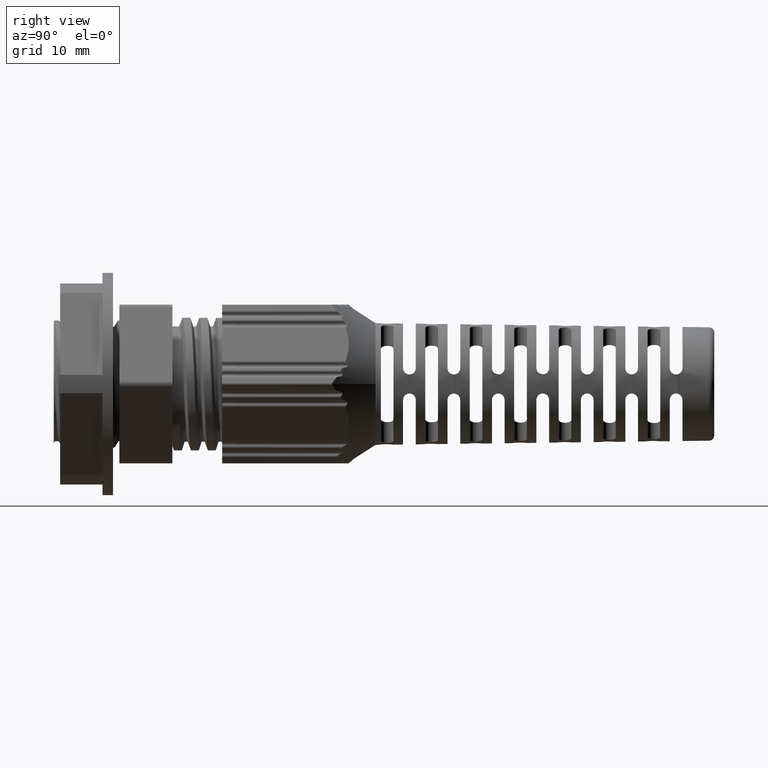
[diagram: clean part render]
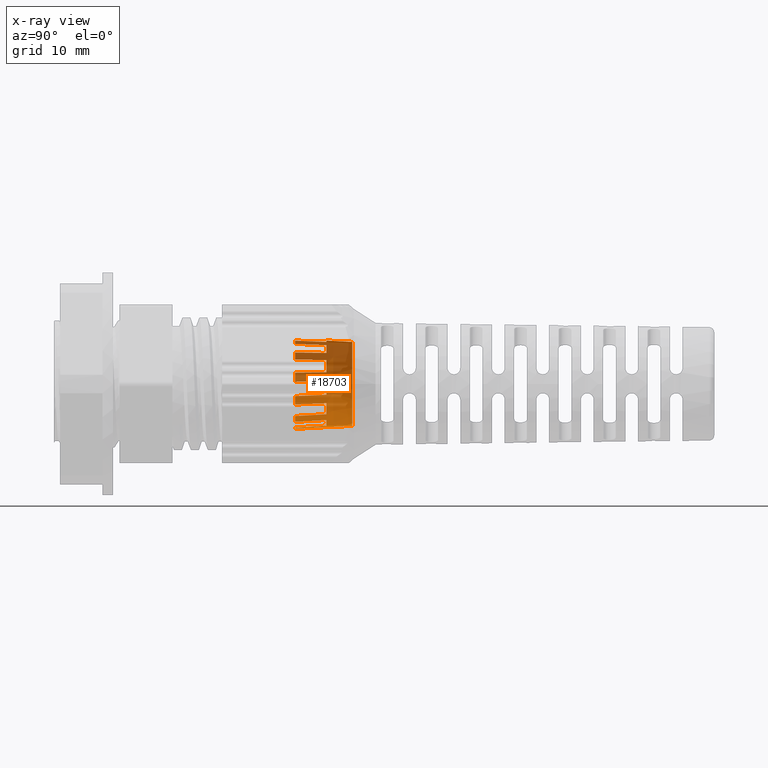
[diagram: x-ray — body ghosted, one internal face saturated and labeled with its STEP entity id]
A machine part, right view, then the same camera in x-ray: the body is ghosted and one INTERNAL B-rep face — a face not visible from any outside direction — is saturated and labeled: STEP entity #18703.
In plain terms, the highlighted conical surface has half-angle 3 deg.
Its self-contained STEP definition (entity closure, byte-faithful):
#1034 = VERTEX_POINT ( 'NONE', #8266 ) ;
#1081 = VERTEX_POINT ( 'NONE', #8327 ) ;
#1084 = VERTEX_POINT ( 'NONE', #8304 ) ;
#1088 = VERTEX_POINT ( 'NONE', #8349 ) ;
#1089 = VERTEX_POINT ( 'NONE', #8310 ) ;
#1090 = VERTEX_POINT ( 'NONE', #8333 ) ;
#1101 = VERTEX_POINT ( 'NONE', #8314 ) ;
#1102 = VERTEX_POINT ( 'NONE', #8348 ) ;
#1107 = VERTEX_POINT ( 'NONE', #8336 ) ;
#1116 = VERTEX_POINT ( 'NONE', #8290 ) ;
#1119 = VERTEX_POINT ( 'NONE', #8309 ) ;
#1135 = VERTEX_POINT ( 'NONE', #8410 ) ;
#1137 = VERTEX_POINT ( 'NONE', #8380 ) ;
#1142 = VERTEX_POINT ( 'NONE', #8369 ) ;
#1147 = VERTEX_POINT ( 'NONE', #8357 ) ;
#1153 = VERTEX_POINT ( 'NONE', #8375 ) ;
#1155 = VERTEX_POINT ( 'NONE', #8353 ) ;
#1176 = VERTEX_POINT ( 'NONE', #8415 ) ;
#1186 = VERTEX_POINT ( 'NONE', #8427 ) ;
#1196 = VERTEX_POINT ( 'NONE', #8438 ) ;
#1198 = VERTEX_POINT ( 'NONE', #8448 ) ;
#1199 = VERTEX_POINT ( 'NONE', #8425 ) ;
#1200 = VERTEX_POINT ( 'NONE', #8444 ) ;
#1205 = VERTEX_POINT ( 'NONE', #8449 ) ;
#1984 = ORIENTED_EDGE ( 'NONE', *, *, #18435, .T. ) ;
#1987 = ORIENTED_EDGE ( 'NONE', *, *, #18556, .T. ) ;
#1997 = ORIENTED_EDGE ( 'NONE', *, *, #18620, .T. ) ;
#2010 = ORIENTED_EDGE ( 'NONE', *, *, #18550, .T. ) ;
#2011 = ORIENTED_EDGE ( 'NONE', *, *, #18444, .T. ) ;
#2013 = ORIENTED_EDGE ( 'NONE', *, *, #18538, .T. ) ;
#2021 = ORIENTED_EDGE ( 'NONE', *, *, #18546, .T. ) ;
#2024 = ORIENTED_EDGE ( 'NONE', *, *, #18529, .T. ) ;
#2029 = ORIENTED_EDGE ( 'NONE', *, *, #18429, .T. ) ;
#2032 = ORIENTED_EDGE ( 'NONE', *, *, #18554, .T. ) ;
#2036 = ORIENTED_EDGE ( 'NONE', *, *, #18541, .T. ) ;
#2254 = EDGE_LOOP ( 'NONE', ( #19493, #19456, #19496, #19448, #3802, #3801, #3798, #3803, #3796, #3804, #3808, #2011, #2024, #2010, #2032, #2029, #1987, #2013, #2021, #1984, #19521, #19538, #19519, #19506, #2036, #1997, #17843, #3763 ) ) ;
#3763 = ORIENTED_EDGE ( 'NONE', *, *, #18446, .T. ) ;
#3796 = ORIENTED_EDGE ( 'NONE', *, *, #18547, .T. ) ;
#3798 = ORIENTED_EDGE ( 'NONE', *, *, #18595, .T. ) ;
#3801 = ORIENTED_EDGE ( 'NONE', *, *, #18659, .T. ) ;
#3802 = ORIENTED_EDGE ( 'NONE', *, *, #18516, .T. ) ;
#3803 = ORIENTED_EDGE ( 'NONE', *, *, #18624, .T. ) ;
#3804 = ORIENTED_EDGE ( 'NONE', *, *, #18576, .T. ) ;
#3808 = ORIENTED_EDGE ( 'NONE', *, *, #18539, .T. ) ;
#8266 = CARTESIAN_POINT ( 'NONE',  ( -2.927370992848297600, 11.09955079886191600, -2.862862538084915100 ) ) ;
#8290 = CARTESIAN_POINT ( 'NONE',  ( -3.966608915151470100, 11.09955079886124800, -1.015626189100907100 ) ) ;
#8304 = CARTESIAN_POINT ( 'NONE',  ( -1.826394405709169900, 11.09955079852327800, 3.664664557200981500 ) ) ;
#8309 = CARTESIAN_POINT ( 'NONE',  ( -1.015626189128300900, 11.09955079851567700, 3.966608915178116300 ) ) ;
#8310 = CARTESIAN_POINT ( 'NONE',  ( -3.664664557177930200, 11.09955079885776600, -1.826394405681624800 ) ) ;
#8314 = CARTESIAN_POINT ( 'NONE',  ( -2.971732320528487600, 8.133721623954620800, -3.038306603215100500 ) ) ;
#8327 = CARTESIAN_POINT ( 'NONE',  ( -2.289570044087580100, 8.133721623953007900, -3.580554288546904800 ) ) ;
#8333 = CARTESIAN_POINT ( 'NONE',  ( -0.2506283259337320800, 11.09955079880867100, -4.086889805719432700 ) ) ;
#8336 = CARTESIAN_POINT ( 'NONE',  ( -3.414036231210196600, 11.09955079925933500, 2.260495400018699200 ) ) ;
#8348 = CARTESIAN_POINT ( 'NONE',  ( -4.245635995554513500, 8.133721623957026000, 0.1925486776503097500 ) ) ;
#8349 = CARTESIAN_POINT ( 'NONE',  ( -0.1925486776502921800, 8.133721623957026000, -4.245635995554515300 ) ) ;
#8353 = CARTESIAN_POINT ( 'NONE',  ( -3.580554288546687200, 8.133721623957026000, 2.289570044087529500 ) ) ;
#8357 = CARTESIAN_POINT ( 'NONE',  ( -4.092748984432502000, 8.133721623954622600, -1.145384542606033600 ) ) ;
#8369 = CARTESIAN_POINT ( 'NONE',  ( -3.942997181918534100, 11.09955079925780400, 1.103746377074331400 ) ) ;
#8375 = CARTESIAN_POINT ( 'NONE',  ( -3.038306603215087600, 8.133721623954622600, 2.971732320528500400 ) ) ;
#8380 = CARTESIAN_POINT ( 'NONE',  ( -2.862862538122592500, 11.09955079852222000, 2.927370992857840600 ) ) ;
#8410 = CARTESIAN_POINT ( 'NONE',  ( -4.086889805706092300, 11.09955079886013800, 0.2506283259386289900 ) ) ;
#8415 = CARTESIAN_POINT ( 'NONE',  ( -4.117116863134524100, 8.133721623954617300, 1.054442381217410400 ) ) ;
#8425 = CARTESIAN_POINT ( 'NONE',  ( -2.260495400020126500, 11.09955079925871100, -3.414036231218303500 ) ) ;
#8427 = CARTESIAN_POINT ( 'NONE',  ( -1.956065951466978000, 8.133721623957026000, 3.773102966197003900 ) ) ;
#8438 = CARTESIAN_POINT ( 'NONE',  ( -3.773102966196996400, 8.133721623957026000, -1.956065951466991800 ) ) ;
#8444 = CARTESIAN_POINT ( 'NONE',  ( -1.054442381217463900, 8.133721623957026000, -4.117116863134381100 ) ) ;
#8448 = CARTESIAN_POINT ( 'NONE',  ( -1.145384542606020100, 8.133721623954620800, 4.092748984432506500 ) ) ;
#8449 = CARTESIAN_POINT ( 'NONE',  ( -1.103746377072093900, 11.09955079926685400, -3.942997181926479300 ) ) ;
#10077 = CARTESIAN_POINT ( 'NONE',  ( 8.673617379884035500E-016, 8.133721624005829700, -4.249999999998976800 ) ) ;
#10101 = LINE ( 'NONE', #10077, #10177 ) ;
#10109 = DIRECTION ( 'NONE',  ( 0.0000000000000000000, -0.9986295347545732800, -0.05233595624295436800 ) ) ;
#10177 = VECTOR ( 'NONE', #10109, 1000.000000000000200 ) ;
#10373 = CIRCLE ( 'NONE', #10441, 4.250000000001955800 ) ;
#10380 = VECTOR ( 'NONE', #11594, 1000.000000000000200 ) ;
#10441 = AXIS2_PLACEMENT_3D ( 'NONE', #12821, #12848, #12814 ) ;
#10545 = CIRCLE ( 'NONE', #10582, 4.094567479217659000 ) ;
#10582 = AXIS2_PLACEMENT_3D ( 'NONE', #12277, #12274, #12287 ) ;
#10614 = CIRCLE ( 'NONE', #10624, 4.094567479175026400 ) ;
#10615 = AXIS2_PLACEMENT_3D ( 'NONE', #12423, #12400, #12387 ) ;
#10624 = AXIS2_PLACEMENT_3D ( 'NONE', #12404, #12398, #12399 ) ;
#10626 = AXIS2_PLACEMENT_3D ( 'NONE', #12474, #12446, #12462 ) ;
#10627 = CIRCLE ( 'NONE', #10650, 4.094567479203448100 ) ;
#10628 = CIRCLE ( 'NONE', #10626, 4.094567479228317100 ) ;
#10644 = CIRCLE ( 'NONE', #10615, 4.094567479203448100 ) ;
#10650 = AXIS2_PLACEMENT_3D ( 'NONE', #12430, #12454, #12436 ) ;
#10669 = CIRCLE ( 'NONE', #10712, 4.094567479235422500 ) ;
#10671 = AXIS2_PLACEMENT_3D ( 'NONE', #12667, #12660, #12692 ) ;
#10687 = CIRCLE ( 'NONE', #10671, 3.966997991873018500 ) ;
#10695 = CIRCLE ( 'NONE', #10696, 4.250000000001955800 ) ;
#10696 = AXIS2_PLACEMENT_3D ( 'NONE', #12801, #12775, #12790 ) ;
#10712 = AXIS2_PLACEMENT_3D ( 'NONE', #12619, #12635, #12636 ) ;
#10730 = B_SPLINE_CURVE_WITH_KNOTS ( 'NONE', 3,
 ( #12735, #12737, #12743, #12721 ),
 .UNSPECIFIED., .F., .F.,
 ( 4, 4 ),
 ( 2.682762334585384400E-015, 0.002970642404096024800 ),
 .UNSPECIFIED. ) ;
#10733 = B_SPLINE_CURVE_WITH_KNOTS ( 'NONE', 3,
 ( #12795, #12774, #12771, #12769 ),
 .UNSPECIFIED., .F., .F.,
 ( 4, 4 ),
 ( 3.862551093485881900E-015, 0.002970642403766580000 ),
 .UNSPECIFIED. ) ;
#10734 = B_SPLINE_CURVE_WITH_KNOTS ( 'NONE', 3,
 ( #12772, #12759, #12773, #12761 ),
 .UNSPECIFIED., .F., .F.,
 ( 4, 4 ),
 ( 2.607125486538065300E-016, 0.002971345022792765700 ),
 .UNSPECIFIED. ) ;
#10735 = B_SPLINE_CURVE_WITH_KNOTS ( 'NONE', 3,
 ( #12782, #12785, #12760, #12786 ),
 .UNSPECIFIED., .F., .F.,
 ( 4, 4 ),
 ( 1.824513507281273300E-016, 0.002970642404504042600 ),
 .UNSPECIFIED. ) ;
#10737 = B_SPLINE_CURVE_WITH_KNOTS ( 'NONE', 3,
 ( #12913, #12937, #12920, #12898 ),
 .UNSPECIFIED., .F., .F.,
 ( 4, 4 ),
 ( 2.641690576252687300E-016, 0.002971345022047731500 ),
 .UNSPECIFIED. ) ;
#10740 = B_SPLINE_CURVE_WITH_KNOTS ( 'NONE', 3,
 ( #13565, #13618, #13562, #13608 ),
 .UNSPECIFIED., .F., .F.,
 ( 4, 4 ),
 ( 4.692462599685548300E-015, 0.002971345022793929300 ),
 .UNSPECIFIED. ) ;
#10741 = B_SPLINE_CURVE_WITH_KNOTS ( 'NONE', 3,
 ( #12753, #12708, #12788, #12783 ),
 .UNSPECIFIED., .F., .F.,
 ( 4, 4 ),
 ( 8.757159405562117200E-016, 0.002970642404502168200 ),
 .UNSPECIFIED. ) ;
#10745 = B_SPLINE_CURVE_WITH_KNOTS ( 'NONE', 3,
 ( #12699, #12700, #12701, #12707 ),
 .UNSPECIFIED., .F., .F.,
 ( 4, 4 ),
 ( 5.108376182649026800E-015, 0.002970642404053947800 ),
 .UNSPECIFIED. ) ;
#10746 = B_SPLINE_CURVE_WITH_KNOTS ( 'NONE', 3,
 ( #12796, #12762, #12791, #12767 ),
 .UNSPECIFIED., .F., .F.,
 ( 4, 4 ),
 ( 2.641686126468327700E-016, 0.002971345022395718300 ),
 .UNSPECIFIED. ) ;
#10747 = B_SPLINE_CURVE_WITH_KNOTS ( 'NONE', 3,
 ( #12835, #12813, #12849, #12850 ),
 .UNSPECIFIED., .F., .F.,
 ( 4, 4 ),
 ( 3.474885764997999700E-016, 0.002970642404100682900 ),
 .UNSPECIFIED. ) ;
#10752 = B_SPLINE_CURVE_WITH_KNOTS ( 'NONE', 3,
 ( #12812, #12823, #12824, #12828 ),
 .UNSPECIFIED., .F., .F.,
 ( 4, 4 ),
 ( 2.659100376284545200E-016, 0.002971345022394988000 ),
 .UNSPECIFIED. ) ;
#10770 = B_SPLINE_CURVE_WITH_KNOTS ( 'NONE', 3,
 ( #13785, #13766, #13767, #13771 ),
 .UNSPECIFIED., .F., .F.,
 ( 4, 4 ),
 ( 2.659001351952917500E-016, 0.002971345022054285700 ),
 .UNSPECIFIED. ) ;
#11594 = DIRECTION ( 'NONE',  ( 6.409306129325001300E-018, -0.9986295347545732800, 0.05233595624295436800 ) ) ;
#11596 = LINE ( 'NONE', #11617, #10380 ) ;
#11617 = CARTESIAN_POINT ( 'NONE',  ( 1.387836627625903500E-015, 8.133721624005829700, 4.249999999998976800 ) ) ;
#12274 = DIRECTION ( 'NONE',  ( -0.0000000000000000000, 1.000000000000000000, -0.0000000000000000000 ) ) ;
#12277 = CARTESIAN_POINT ( 'NONE',  ( 8.673617379884034500E-016, 11.09955079880364800, 0.0000000000000000000 ) ) ;
#12287 = DIRECTION ( 'NONE',  ( 0.0000000000000000000, 0.0000000000000000000, -1.000000000000000000 ) ) ;
#12387 = DIRECTION ( 'NONE',  ( 0.0000000000000000000, 0.0000000000000000000, -1.000000000000000000 ) ) ;
#12398 = DIRECTION ( 'NONE',  ( -0.0000000000000000000, 1.000000000000000000, -0.0000000000000000000 ) ) ;
#12399 = DIRECTION ( 'NONE',  ( -8.881784197001252300E-016, 0.0000000000000000000, -1.000000000000000000 ) ) ;
#12400 = DIRECTION ( 'NONE',  ( -0.0000000000000000000, 1.000000000000000000, -0.0000000000000000000 ) ) ;
#12404 = CARTESIAN_POINT ( 'NONE',  ( 8.673617379884034500E-016, 11.09955079925839500, 0.0000000000000000000 ) ) ;
#12423 = CARTESIAN_POINT ( 'NONE',  ( 8.673617379884034500E-016, 11.09955079886049100, 0.0000000000000000000 ) ) ;
#12430 = CARTESIAN_POINT ( 'NONE',  ( 8.673617379884034500E-016, 11.09955079886049100, 0.0000000000000000000 ) ) ;
#12436 = DIRECTION ( 'NONE',  ( 0.0000000000000000000, 0.0000000000000000000, -1.000000000000000000 ) ) ;
#12446 = DIRECTION ( 'NONE',  ( -0.0000000000000000000, 1.000000000000000000, -0.0000000000000000000 ) ) ;
#12454 = DIRECTION ( 'NONE',  ( -0.0000000000000000000, 1.000000000000000000, -0.0000000000000000000 ) ) ;
#12462 = DIRECTION ( 'NONE',  ( 5.329070518200751400E-015, 0.0000000000000000000, -1.000000000000000000 ) ) ;
#12474 = CARTESIAN_POINT ( 'NONE',  ( 8.673617379884035500E-016, 11.09955079851943100, 0.0000000000000000000 ) ) ;
#12619 = CARTESIAN_POINT ( 'NONE',  ( 8.673617379884034500E-016, 11.09955079851943100, 0.0000000000000000000 ) ) ;
#12635 = DIRECTION ( 'NONE',  ( -0.0000000000000000000, 1.000000000000000000, -0.0000000000000000000 ) ) ;
#12636 = DIRECTION ( 'NONE',  ( 0.0000000000000000000, 0.0000000000000000000, -1.000000000000000000 ) ) ;
#12660 = DIRECTION ( 'NONE',  ( 0.0000000000000000000, -1.000000000000000000, 0.0000000000000000000 ) ) ;
#12667 = CARTESIAN_POINT ( 'NONE',  ( 8.673617379884035500E-016, 13.53372162395771700, 0.0000000000000000000 ) ) ;
#12692 = DIRECTION ( 'NONE',  ( 0.0000000000000000000, 0.0000000000000000000, -1.000000000000000000 ) ) ;
#12699 = CARTESIAN_POINT ( 'NONE',  ( -0.2506283259337320800, 11.09955079880867100, -4.086889805719432700 ) ) ;
#12700 = CARTESIAN_POINT ( 'NONE',  ( -0.2312012878382466700, 10.11095223299198600, -4.139988754638489300 ) ) ;
#12701 = CARTESIAN_POINT ( 'NONE',  ( -0.2118442980673458700, 9.122341991016156700, -4.192896243985036800 ) ) ;
#12707 = CARTESIAN_POINT ( 'NONE',  ( -0.1925486776502921800, 8.133721623957026000, -4.245635995554515300 ) ) ;
#12708 = CARTESIAN_POINT ( 'NONE',  ( -3.469734788962950000, 10.11095223329031800, 2.270220565971939200 ) ) ;
#12721 = CARTESIAN_POINT ( 'NONE',  ( -3.773102966196996400, 8.133721623957026000, -1.956065951466991800 ) ) ;
#12735 = CARTESIAN_POINT ( 'NONE',  ( -3.664664557177930200, 11.09955079885776600, -1.826394405681624800 ) ) ;
#12737 = CARTESIAN_POINT ( 'NONE',  ( -3.700936076816938100, 10.11095223301999500, -1.869768188662409100 ) ) ;
#12743 = CARTESIAN_POINT ( 'NONE',  ( -3.737076811756565600, 9.122341991030163300, -1.912985578218691800 ) ) ;
#12753 = CARTESIAN_POINT ( 'NONE',  ( -3.414036231210196600, 11.09955079925933500, 2.260495400018699200 ) ) ;
#12759 = CARTESIAN_POINT ( 'NONE',  ( -4.059450485957825100, 9.122354959437341600, 1.070771280980767700 ) ) ;
#12760 = CARTESIAN_POINT ( 'NONE',  ( -2.279910665764311800, 9.122341991163539300, -3.525232513681457300 ) ) ;
#12761 = CARTESIAN_POINT ( 'NONE',  ( -3.942997181918534100, 11.09955079925780400, 1.103746377074331400 ) ) ;
#12762 = CARTESIAN_POINT ( 'NONE',  ( -2.957040373953007800, 9.122354959305948100, -2.980201605761907400 ) ) ;
#12767 = CARTESIAN_POINT ( 'NONE',  ( -2.927370992848297600, 11.09955079886191600, -2.862862538084915100 ) ) ;
#12769 = CARTESIAN_POINT ( 'NONE',  ( -1.956065951466978000, 8.133721623957026000, 3.773102966197003900 ) ) ;
#12771 = CARTESIAN_POINT ( 'NONE',  ( -1.912985578223457900, 9.122341990920524800, 3.737076811760567300 ) ) ;
#12772 = CARTESIAN_POINT ( 'NONE',  ( -4.117116863134524100, 8.133721623954617300, 1.054442381217410400 ) ) ;
#12773 = CARTESIAN_POINT ( 'NONE',  ( -4.001429913768830300, 10.11096607095596400, 1.087200475146783900 ) ) ;
#12774 = CARTESIAN_POINT ( 'NONE',  ( -1.869768188671982100, 10.11095223280072000, 3.700936076824961500 ) ) ;
#12775 = DIRECTION ( 'NONE',  ( -0.0000000000000000000, 1.000000000000000000, -0.0000000000000000000 ) ) ;
#12782 = CARTESIAN_POINT ( 'NONE',  ( -2.260495400020126500, 11.09955079925871100, -3.414036231218303500 ) ) ;
#12783 = CARTESIAN_POINT ( 'NONE',  ( -3.580554288546687200, 8.133721623957026000, 2.289570044087529500 ) ) ;
#12785 = CARTESIAN_POINT ( 'NONE',  ( -2.270220565971969400, 10.11095223328835100, -3.469734788963053400 ) ) ;
#12786 = CARTESIAN_POINT ( 'NONE',  ( -2.289570044087580100, 8.133721623953007900, -3.580554288546904800 ) ) ;
#12788 = CARTESIAN_POINT ( 'NONE',  ( -3.525232513681365400, 9.122341991165326300, 2.279910665764282900 ) ) ;
#12790 = DIRECTION ( 'NONE',  ( 0.0000000000000000000, 0.0000000000000000000, -1.000000000000000000 ) ) ;
#12791 = CARTESIAN_POINT ( 'NONE',  ( -2.942258187371964400, 10.11096607069318400, -2.921739719228937800 ) ) ;
#12795 = CARTESIAN_POINT ( 'NONE',  ( -1.826394405709169900, 11.09955079852327800, 3.664664557200981500 ) ) ;
#12796 = CARTESIAN_POINT ( 'NONE',  ( -2.971732320528487600, 8.133721623954620800, -3.038306603215100500 ) ) ;
#12801 = CARTESIAN_POINT ( 'NONE',  ( 8.673617379884035500E-016, 8.133721623948986200, 0.0000000000000000000 ) ) ;
#12812 = CARTESIAN_POINT ( 'NONE',  ( -4.092748984432502000, 8.133721623954622600, -1.145384542606033600 ) ) ;
#12813 = CARTESIAN_POINT ( 'NONE',  ( -4.139988754636823000, 10.11095223302309300, 0.2312012878388731200 ) ) ;
#12814 = DIRECTION ( 'NONE',  ( 0.0000000000000000000, 0.0000000000000000000, -1.000000000000000000 ) ) ;
#12821 = CARTESIAN_POINT ( 'NONE',  ( 8.673617379884035500E-016, 8.133721623948986200, 0.0000000000000000000 ) ) ;
#12823 = CARTESIAN_POINT ( 'NONE',  ( -4.050972886740517300, 9.122354959305466700, -1.102410112012499200 ) ) ;
#12824 = CARTESIAN_POINT ( 'NONE',  ( -4.008940194371387400, 10.11096607069222100, -1.059171726412327300 ) ) ;
#12828 = CARTESIAN_POINT ( 'NONE',  ( -3.966608915151470100, 11.09955079886124800, -1.015626189100907100 ) ) ;
#12835 = CARTESIAN_POINT ( 'NONE',  ( -4.086889805706092300, 11.09955079886013800, 0.2506283259386289900 ) ) ;
#12848 = DIRECTION ( 'NONE',  ( -0.0000000000000000000, 1.000000000000000000, -0.0000000000000000000 ) ) ;
#12849 = CARTESIAN_POINT ( 'NONE',  ( -4.192896243984204600, 9.122341991031710500, 0.2118442980676665000 ) ) ;
#12850 = CARTESIAN_POINT ( 'NONE',  ( -4.245635995554513500, 8.133721623957026000, 0.1925486776503097500 ) ) ;
#12876 = CARTESIAN_POINT ( 'NONE',  ( 8.673617379884035500E-016, 8.133721623948986200, 0.0000000000000000000 ) ) ;
#12898 = CARTESIAN_POINT ( 'NONE',  ( -1.015626189128300900, 11.09955079851567700, 3.966608915178116300 ) ) ;
#12913 = CARTESIAN_POINT ( 'NONE',  ( -1.145384542606020100, 8.133721623954620800, 4.092748984432506500 ) ) ;
#12920 = CARTESIAN_POINT ( 'NONE',  ( -1.059171726422551300, 10.11096607045814700, 4.008940194381343000 ) ) ;
#12937 = CARTESIAN_POINT ( 'NONE',  ( -1.102410112017573600, 9.122354959188426100, 4.050972886745466200 ) ) ;
#12938 = DIRECTION ( 'NONE',  ( 0.0000000000000000000, 0.0000000000000000000, -1.000000000000000000 ) ) ;
#12944 = DIRECTION ( 'NONE',  ( -0.0000000000000000000, 1.000000000000000000, -0.0000000000000000000 ) ) ;
#13019 = CIRCLE ( 'NONE', #13049, 4.250000000001955800 ) ;
#13031 = CIRCLE ( 'NONE', #13035, 4.094567479175026400 ) ;
#13035 = AXIS2_PLACEMENT_3D ( 'NONE', #13759, #13803, #13826 ) ;
#13038 = CIRCLE ( 'NONE', #13057, 4.250000000001955800 ) ;
#13044 = AXIS2_PLACEMENT_3D ( 'NONE', #13744, #13783, #13776 ) ;
#13046 = CIRCLE ( 'NONE', #13044, 4.250000000001955800 ) ;
#13049 = AXIS2_PLACEMENT_3D ( 'NONE', #12876, #12944, #12938 ) ;
#13057 = AXIS2_PLACEMENT_3D ( 'NONE', #13760, #13747, #13765 ) ;
#13066 = AXIS2_PLACEMENT_3D ( 'NONE', #13950, #13969, #13948 ) ;
#13120 = CIRCLE ( 'NONE', #13066, 4.250000000001955800 ) ;
#13159 = AXIS2_PLACEMENT_3D ( 'NONE', #14146, #14178, #14182 ) ;
#13180 = CONICAL_SURFACE ( 'NONE', #13159, 4.249999999998976800, 0.05235987755984043700 ) ;
#13562 = CARTESIAN_POINT ( 'NONE',  ( -1.087200475147027700, 10.11096607096978900, -4.001429913768014000 ) ) ;
#13565 = CARTESIAN_POINT ( 'NONE',  ( -1.054442381217463900, 8.133721623957026000, -4.117116863134381100 ) ) ;
#13608 = CARTESIAN_POINT ( 'NONE',  ( -1.103746377072093900, 11.09955079926685400, -3.942997181926479300 ) ) ;
#13618 = CARTESIAN_POINT ( 'NONE',  ( -1.070771280980956200, 9.122354959447930500, -4.059450485957202500 ) ) ;
#13744 = CARTESIAN_POINT ( 'NONE',  ( 8.673617379884035500E-016, 8.133721623948986200, 0.0000000000000000000 ) ) ;
#13747 = DIRECTION ( 'NONE',  ( -0.0000000000000000000, 1.000000000000000000, -0.0000000000000000000 ) ) ;
#13759 = CARTESIAN_POINT ( 'NONE',  ( 8.673617379884034500E-016, 11.09955079925839500, 0.0000000000000000000 ) ) ;
#13760 = CARTESIAN_POINT ( 'NONE',  ( 8.673617379884035500E-016, 8.133721623948986200, 0.0000000000000000000 ) ) ;
#13765 = DIRECTION ( 'NONE',  ( 0.0000000000000000000, 0.0000000000000000000, -1.000000000000000000 ) ) ;
#13766 = CARTESIAN_POINT ( 'NONE',  ( -2.980201605768546500, 9.122354959192785300, 2.957040373954702000 ) ) ;
#13767 = CARTESIAN_POINT ( 'NONE',  ( -2.921739719242308500, 10.11096607046686400, 2.942258187375360400 ) ) ;
#13771 = CARTESIAN_POINT ( 'NONE',  ( -2.862862538122592500, 11.09955079852222000, 2.927370992857840600 ) ) ;
#13776 = DIRECTION ( 'NONE',  ( 0.0000000000000000000, 0.0000000000000000000, -1.000000000000000000 ) ) ;
#13783 = DIRECTION ( 'NONE',  ( -0.0000000000000000000, 1.000000000000000000, -0.0000000000000000000 ) ) ;
#13785 = CARTESIAN_POINT ( 'NONE',  ( -3.038306603215087600, 8.133721623954622600, 2.971732320528500400 ) ) ;
#13803 = DIRECTION ( 'NONE',  ( -0.0000000000000000000, 1.000000000000000000, -0.0000000000000000000 ) ) ;
#13826 = DIRECTION ( 'NONE',  ( 0.0000000000000000000, 0.0000000000000000000, -1.000000000000000000 ) ) ;
#13948 = DIRECTION ( 'NONE',  ( 0.0000000000000000000, 0.0000000000000000000, -1.000000000000000000 ) ) ;
#13950 = CARTESIAN_POINT ( 'NONE',  ( 8.673617379884035500E-016, 8.133721623948986200, 0.0000000000000000000 ) ) ;
#13969 = DIRECTION ( 'NONE',  ( -0.0000000000000000000, 1.000000000000000000, -0.0000000000000000000 ) ) ;
#14146 = CARTESIAN_POINT ( 'NONE',  ( 8.673617379884035500E-016, 8.133721624005829700, 0.0000000000000000000 ) ) ;
#14154 = FACE_OUTER_BOUND ( 'NONE', #2254, .T. ) ;
#14178 = DIRECTION ( 'NONE',  ( 0.0000000000000000000, -1.000000000000000000, 0.0000000000000000000 ) ) ;
#14182 = DIRECTION ( 'NONE',  ( 0.0000000000000000000, 0.0000000000000000000, -1.000000000000000000 ) ) ;
#16666 = CARTESIAN_POINT ( 'NONE',  ( 8.673617379884035500E-016, 13.53372162395771700, -3.966997991873018500 ) ) ;
#16674 = CARTESIAN_POINT ( 'NONE',  ( 1.370507752455886600E-015, 13.53372162395771700, 3.966997991873018500 ) ) ;
#16715 = CARTESIAN_POINT ( 'NONE',  ( 1.368801633721569600E-015, 11.09955079851943100, 4.094567479229832300 ) ) ;
#16773 = CARTESIAN_POINT ( 'NONE',  ( 8.673617379884034500E-016, 11.09955079880364800, -4.094567479214943800 ) ) ;
#17528 = EDGE_CURVE ( 'NONE', #20314, #20390, #10101, .T. ) ;
#17734 = EDGE_CURVE ( 'NONE', #20335, #20369, #11596, .T. ) ;
#17843 = ORIENTED_EDGE ( 'NONE', *, *, #18585, .T. ) ;
#18389 = EDGE_CURVE ( 'NONE', #20390, #1090, #10545, .T. ) ;
#18429 = EDGE_CURVE ( 'NONE', #1116, #1135, #10644, .T. ) ;
#18435 = EDGE_CURVE ( 'NONE', #1142, #1107, #10614, .T. ) ;
#18444 = EDGE_CURVE ( 'NONE', #1034, #1089, #10627, .T. ) ;
#18446 = EDGE_CURVE ( 'NONE', #1119, #20369, #10628, .T. ) ;
#18501 = EDGE_CURVE ( 'NONE', #1137, #1084, #10669, .T. ) ;
#18514 = EDGE_CURVE ( 'NONE', #20335, #20314, #10687, .T. ) ;
#18516 = EDGE_CURVE ( 'NONE', #1090, #1088, #10745, .T. ) ;
#18529 = EDGE_CURVE ( 'NONE', #1089, #1196, #10730, .T. ) ;
#18534 = EDGE_CURVE ( 'NONE', #1107, #1155, #10741, .T. ) ;
#18538 = EDGE_CURVE ( 'NONE', #1102, #1176, #10695, .T. ) ;
#18539 = EDGE_CURVE ( 'NONE', #1101, #1034, #10746, .T. ) ;
#18541 = EDGE_CURVE ( 'NONE', #1084, #1186, #10733, .T. ) ;
#18546 = EDGE_CURVE ( 'NONE', #1176, #1142, #10734, .T. ) ;
#18547 = EDGE_CURVE ( 'NONE', #1199, #1081, #10735, .T. ) ;
#18550 = EDGE_CURVE ( 'NONE', #1196, #1147, #10373, .T. ) ;
#18554 = EDGE_CURVE ( 'NONE', #1147, #1116, #10752, .T. ) ;
#18556 = EDGE_CURVE ( 'NONE', #1135, #1102, #10747, .T. ) ;
#18576 = EDGE_CURVE ( 'NONE', #1081, #1101, #13019, .T. ) ;
#18585 = EDGE_CURVE ( 'NONE', #1198, #1119, #10737, .T. ) ;
#18595 = EDGE_CURVE ( 'NONE', #1200, #1205, #10740, .T. ) ;
#18617 = EDGE_CURVE ( 'NONE', #1155, #1153, #13038, .T. ) ;
#18619 = EDGE_CURVE ( 'NONE', #1153, #1137, #10770, .T. ) ;
#18620 = EDGE_CURVE ( 'NONE', #1186, #1198, #13046, .T. ) ;
#18624 = EDGE_CURVE ( 'NONE', #1205, #1199, #13031, .T. ) ;
#18659 = EDGE_CURVE ( 'NONE', #1088, #1200, #13120, .T. ) ;
#18703 = ADVANCED_FACE ( 'NONE', ( #14154 ), #13180, .T. ) ;
#19448 = ORIENTED_EDGE ( 'NONE', *, *, #18389, .T. ) ;
#19456 = ORIENTED_EDGE ( 'NONE', *, *, #18514, .T. ) ;
#19493 = ORIENTED_EDGE ( 'NONE', *, *, #17734, .F. ) ;
#19496 = ORIENTED_EDGE ( 'NONE', *, *, #17528, .T. ) ;
#19506 = ORIENTED_EDGE ( 'NONE', *, *, #18501, .T. ) ;
#19519 = ORIENTED_EDGE ( 'NONE', *, *, #18619, .T. ) ;
#19521 = ORIENTED_EDGE ( 'NONE', *, *, #18534, .T. ) ;
#19538 = ORIENTED_EDGE ( 'NONE', *, *, #18617, .T. ) ;
#20314 = VERTEX_POINT ( 'NONE', #16666 ) ;
#20335 = VERTEX_POINT ( 'NONE', #16674 ) ;
#20369 = VERTEX_POINT ( 'NONE', #16715 ) ;
#20390 = VERTEX_POINT ( 'NONE', #16773 ) ;